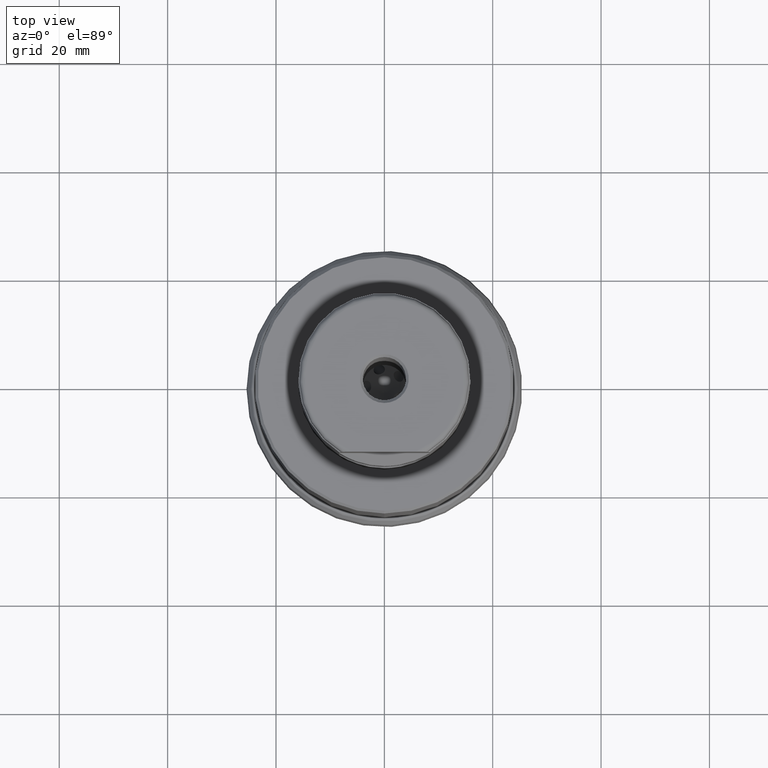
[diagram: clean part render]
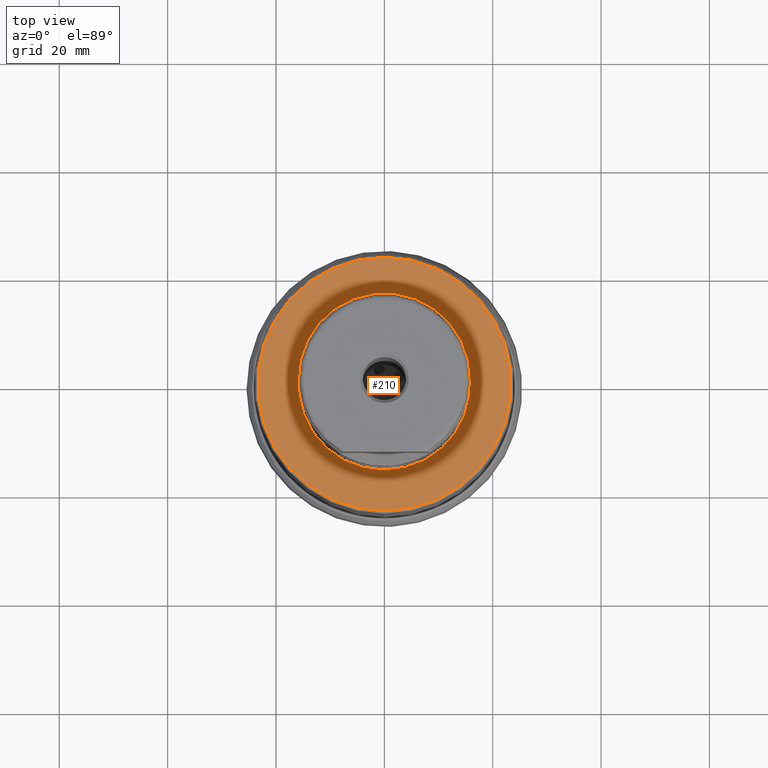
[diagram: same view with one face highlighted and labeled with its STEP entity id]
A machine part, top view. The second image highlights one B-rep face of the part: STEP entity #210.
In plain terms, the highlighted planar face has unit normal (0, 0, 1).
Its self-contained STEP definition (entity closure, byte-faithful):
#183=PLANE('',#1194);
#210=ADVANCED_FACE('',(#374,#375),#183,.T.);
#312=CIRCLE('',#1192,23.4);
#313=CIRCLE('',#1193,15.875);
#374=FACE_BOUND('',#502,.T.);
#375=FACE_BOUND('',#503,.T.);
#502=EDGE_LOOP('',(#696));
#503=EDGE_LOOP('',(#697));
#696=ORIENTED_EDGE('',*,*,#1013,.T.);
#697=ORIENTED_EDGE('',*,*,#1014,.T.);
#914=VERTEX_POINT('',#2170);
#915=VERTEX_POINT('',#2172);
#1013=EDGE_CURVE('',#914,#914,#312,.T.);
#1014=EDGE_CURVE('',#915,#915,#313,.T.);
#1192=AXIS2_PLACEMENT_3D('',#2169,#1354,#1355);
#1193=AXIS2_PLACEMENT_3D('',#2171,#1356,#1357);
#1194=AXIS2_PLACEMENT_3D('',#2173,#1358,#1359);
#1354=DIRECTION('',(0.,1.17145536458252E-15,1.));
#1355=DIRECTION('',(0.,-1.,1.18613571006961E-15));
#1356=DIRECTION('',(0.,-1.17145536458252E-15,-1.));
#1357=DIRECTION('',(0.,-1.,1.31128703695885E-15));
#1358=DIRECTION('',(0.,1.17145536458252E-15,1.));
#1359=DIRECTION('',(0.,-1.,1.17267306976032E-15));
#2169=CARTESIAN_POINT('',(0.,6.69486740858912E-14,57.15));
#2170=CARTESIAN_POINT('',(0.,-23.3999999999999,57.15));
#2171=CARTESIAN_POINT('',(0.,6.69486740858912E-14,57.15));
#2172=CARTESIAN_POINT('',(0.,-15.8749999999999,57.15));
#2173=CARTESIAN_POINT('',(15.475,6.69486740858912E-14,57.15));